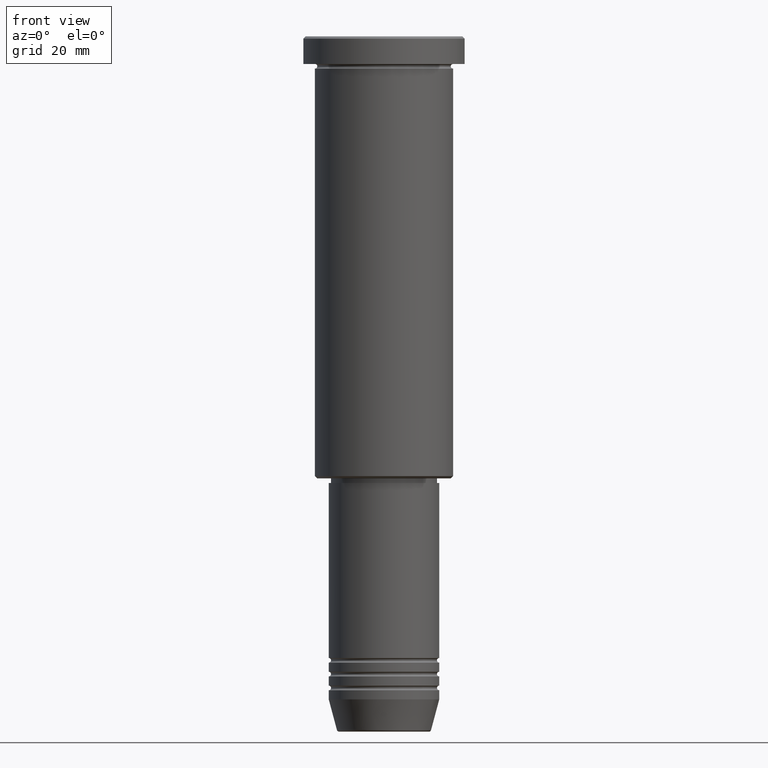
[diagram: clean part render]
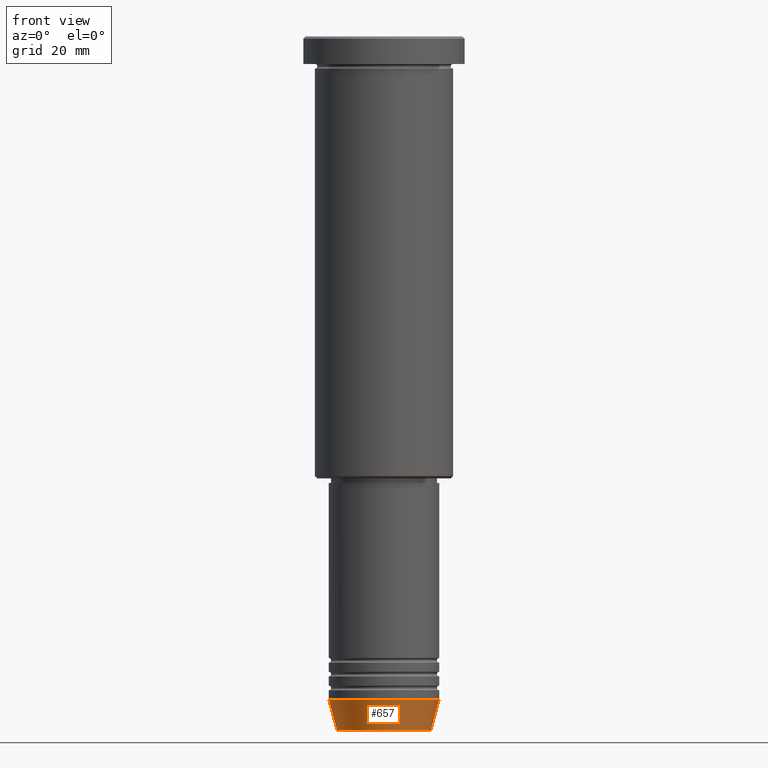
[diagram: same view with one face highlighted and labeled with its STEP entity id]
A machine part, front view. The second image highlights one B-rep face of the part: STEP entity #657.
In plain terms, the highlighted conical surface has half-angle 15 deg.
Its self-contained STEP definition (entity closure, byte-faithful):
#60 = DIRECTION ( 'NONE',  ( 1.000000000000000000, 0.000000000000000000, 0.000000000000000000 ) ) ;
#98 = ORIENTED_EDGE ( 'NONE', *, *, #1157, .F. ) ;
#132 = CARTESIAN_POINT ( 'NONE',  ( 12.00000000000000000, 0.000000000000000000, -144.0000000000000284 ) ) ;
#148 = CIRCLE ( 'NONE', #1153, 12.00000000000000000 ) ;
#155 = DIRECTION ( 'NONE',  ( -0.000000000000000000, -0.000000000000000000, 1.000000000000000000 ) ) ;
#203 = EDGE_CURVE ( 'NONE', #983, #988, #474, .T. ) ;
#206 = CARTESIAN_POINT ( 'NONE',  ( -10.22365507213719127, 1.360806402472382744E-15, -150.6294095225512706 ) ) ;
#221 = CARTESIAN_POINT ( 'NONE',  ( -12.00000000000000000, 1.469576158976823947E-15, -144.0000000000000284 ) ) ;
#228 = CONICAL_SURFACE ( 'NONE', #421, 12.00000000000000000, 0.2617993877991500740 ) ;
#271 = ORIENTED_EDGE ( 'NONE', *, *, #558, .T. ) ;
#293 = DIRECTION ( 'NONE',  ( -0.2588190451025213501, 3.169619151431772337E-17, 0.9659258262890680902 ) ) ;
#303 = CARTESIAN_POINT ( 'NONE',  ( 0.000000000000000000, 0.000000000000000000, -150.6294095225512706 ) ) ;
#348 = EDGE_CURVE ( 'NONE', #634, #562, #418, .T. ) ;
#418 = LINE ( 'NONE', #873, #437 ) ;
#421 = AXIS2_PLACEMENT_3D ( 'NONE', #709, #511, #60 ) ;
#437 = VECTOR ( 'NONE', #1154, 1000.000000000000000 ) ;
#454 = ORIENTED_EDGE ( 'NONE', *, *, #348, .T. ) ;
#463 = EDGE_LOOP ( 'NONE', ( #931, #271, #454, #98 ) ) ;
#469 = CIRCLE ( 'NONE', #1002, 10.22365507213719127 ) ;
#474 = LINE ( 'NONE', #746, #1169 ) ;
#477 = DIRECTION ( 'NONE',  ( -0.000000000000000000, -0.000000000000000000, 1.000000000000000000 ) ) ;
#511 = DIRECTION ( 'NONE',  ( -0.000000000000000000, -0.000000000000000000, 1.000000000000000000 ) ) ;
#558 = EDGE_CURVE ( 'NONE', #983, #634, #469, .T. ) ;
#562 = VERTEX_POINT ( 'NONE', #132 ) ;
#634 = VERTEX_POINT ( 'NONE', #1045 ) ;
#657 = ADVANCED_FACE ( 'NONE', ( #879 ), #228, .T. ) ;
#708 = CARTESIAN_POINT ( 'NONE',  ( 0.000000000000000000, 0.000000000000000000, -144.0000000000000284 ) ) ;
#709 = CARTESIAN_POINT ( 'NONE',  ( 0.000000000000000000, 0.000000000000000000, -144.0000000000000284 ) ) ;
#746 = CARTESIAN_POINT ( 'NONE',  ( -12.00000000000000000, 1.469576158976823947E-15, -144.0000000000000284 ) ) ;
#844 = DIRECTION ( 'NONE',  ( 1.000000000000000000, 0.000000000000000000, 0.000000000000000000 ) ) ;
#866 = DIRECTION ( 'NONE',  ( 1.000000000000000000, 0.000000000000000000, 0.000000000000000000 ) ) ;
#873 = CARTESIAN_POINT ( 'NONE',  ( 12.00000000000000000, 0.000000000000000000, -144.0000000000000284 ) ) ;
#879 = FACE_OUTER_BOUND ( 'NONE', #463, .T. ) ;
#931 = ORIENTED_EDGE ( 'NONE', *, *, #203, .F. ) ;
#983 = VERTEX_POINT ( 'NONE', #206 ) ;
#988 = VERTEX_POINT ( 'NONE', #221 ) ;
#1002 = AXIS2_PLACEMENT_3D ( 'NONE', #303, #477, #844 ) ;
#1045 = CARTESIAN_POINT ( 'NONE',  ( 10.22365507213719127, 0.000000000000000000, -150.6294095225512706 ) ) ;
#1153 = AXIS2_PLACEMENT_3D ( 'NONE', #708, #155, #866 ) ;
#1154 = DIRECTION ( 'NONE',  ( 0.2588190451025213501, 0.000000000000000000, 0.9659258262890680902 ) ) ;
#1157 = EDGE_CURVE ( 'NONE', #988, #562, #148, .T. ) ;
#1169 = VECTOR ( 'NONE', #293, 1000.000000000000000 ) ;